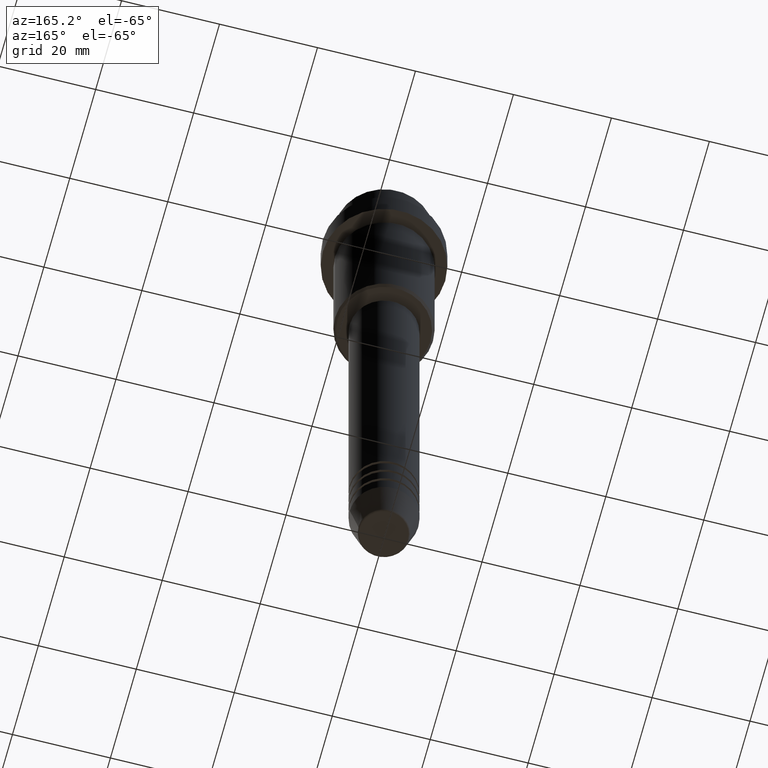
[diagram: clean part render]
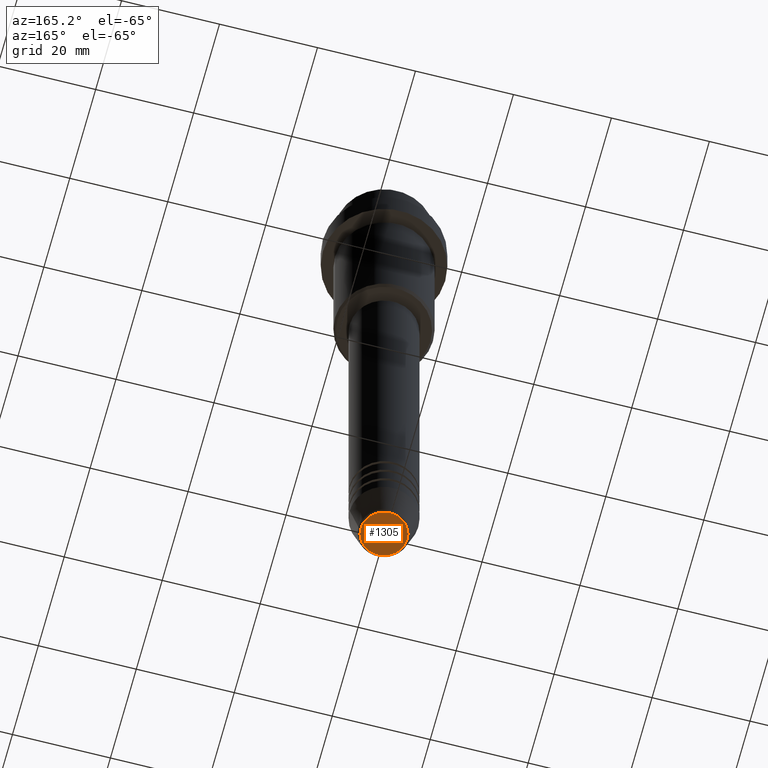
[diagram: same view with one face highlighted and labeled with its STEP entity id]
A machine part, auxiliary view. The second image highlights one B-rep face of the part: STEP entity #1305.
In plain terms, the highlighted planar face has unit normal (0, -0, 1).
Its self-contained STEP definition (entity closure, byte-faithful):
#50 = DIRECTION ( 'NONE',  ( 0.000000000000000000, 0.000000000000000000, -1.000000000000000000 ) ) ;
#69 = DIRECTION ( 'NONE',  ( 1.000000000000000000, 0.000000000000000000, 0.000000000000000000 ) ) ;
#177 = AXIS2_PLACEMENT_3D ( 'NONE', #883, #1300, #1081 ) ;
#302 = EDGE_CURVE ( 'NONE', #1161, #387, #970, .T. ) ;
#373 = DIRECTION ( 'NONE',  ( 1.000000000000000000, 0.000000000000000000, 0.000000000000000000 ) ) ;
#387 = VERTEX_POINT ( 'NONE', #648 ) ;
#419 = CARTESIAN_POINT ( 'NONE',  ( 0.000000000000000000, 0.000000000000000000, -140.0000000000000000 ) ) ;
#427 = AXIS2_PLACEMENT_3D ( 'NONE', #419, #748, #69 ) ;
#571 = ORIENTED_EDGE ( 'NONE', *, *, #302, .T. ) ;
#611 = AXIS2_PLACEMENT_3D ( 'NONE', #708, #50, #373 ) ;
#645 = PLANE ( 'NONE',  #177 ) ;
#648 = CARTESIAN_POINT ( 'NONE',  ( -4.740692158992658278, 6.101402971097982718E-16, -140.0000000000000000 ) ) ;
#708 = CARTESIAN_POINT ( 'NONE',  ( 0.000000000000000000, 0.000000000000000000, -140.0000000000000000 ) ) ;
#748 = DIRECTION ( 'NONE',  ( 0.000000000000000000, 0.000000000000000000, -1.000000000000000000 ) ) ;
#780 = FACE_OUTER_BOUND ( 'NONE', #1047, .T. ) ;
#883 = CARTESIAN_POINT ( 'NONE',  ( 0.000000000000000000, 0.000000000000000000, -140.0000000000000000 ) ) ;
#970 = CIRCLE ( 'NONE', #427, 4.740692158992658278 ) ;
#1047 = EDGE_LOOP ( 'NONE', ( #571, #1368 ) ) ;
#1076 = EDGE_CURVE ( 'NONE', #387, #1161, #1222, .T. ) ;
#1081 = DIRECTION ( 'NONE',  ( 1.000000000000000000, 0.000000000000000000, 0.000000000000000000 ) ) ;
#1161 = VERTEX_POINT ( 'NONE', #1396 ) ;
#1222 = CIRCLE ( 'NONE', #611, 4.740692158992658278 ) ;
#1300 = DIRECTION ( 'NONE',  ( 0.000000000000000000, -0.000000000000000000, 1.000000000000000000 ) ) ;
#1305 = ADVANCED_FACE ( 'NONE', ( #780 ), #645, .F. ) ;
#1368 = ORIENTED_EDGE ( 'NONE', *, *, #1076, .T. ) ;
#1396 = CARTESIAN_POINT ( 'NONE',  ( 4.740692158992658278, 0.000000000000000000, -140.0000000000000000 ) ) ;